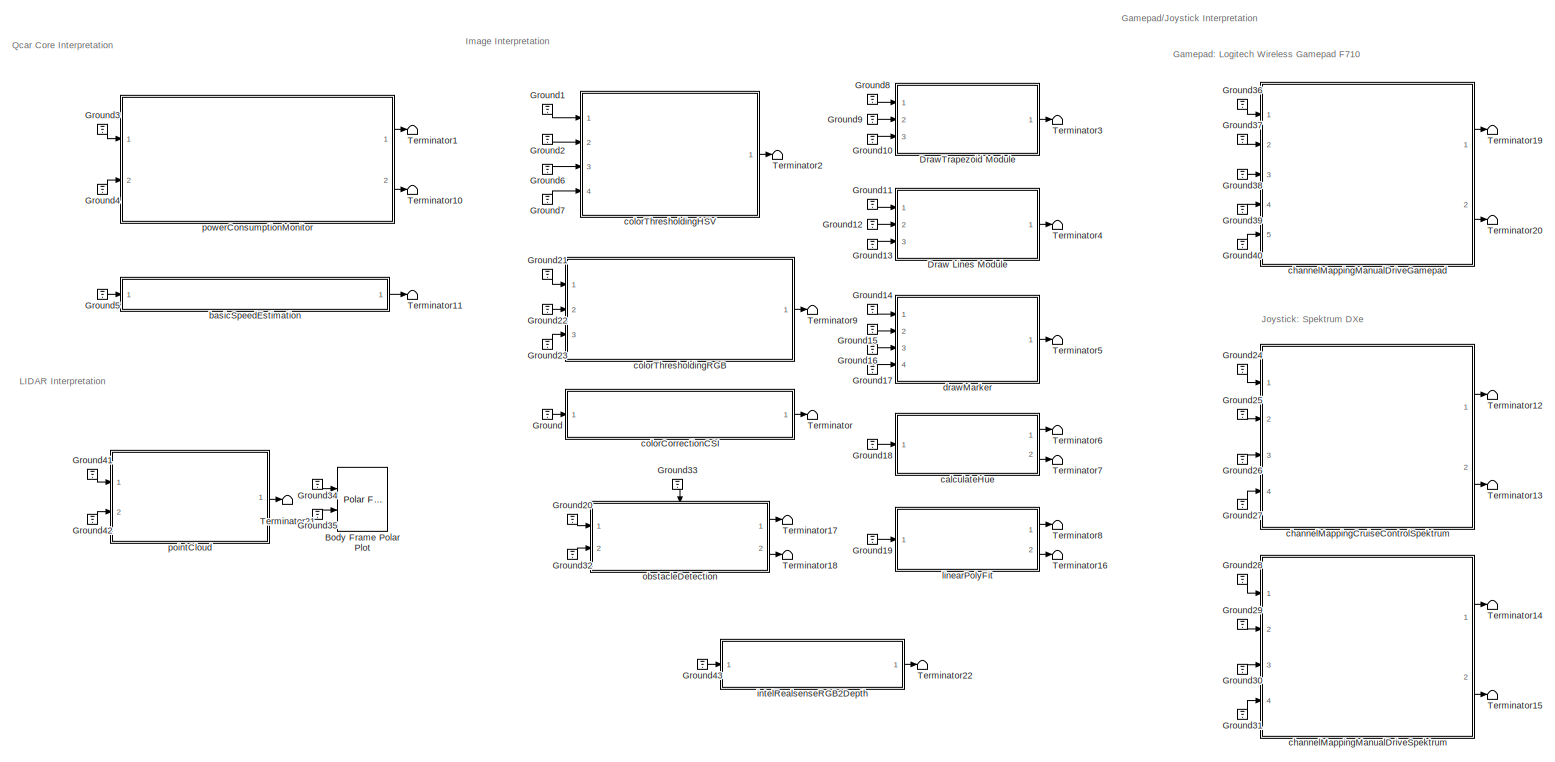
[diagram: root canvas - part 1/1, most of the canvas]
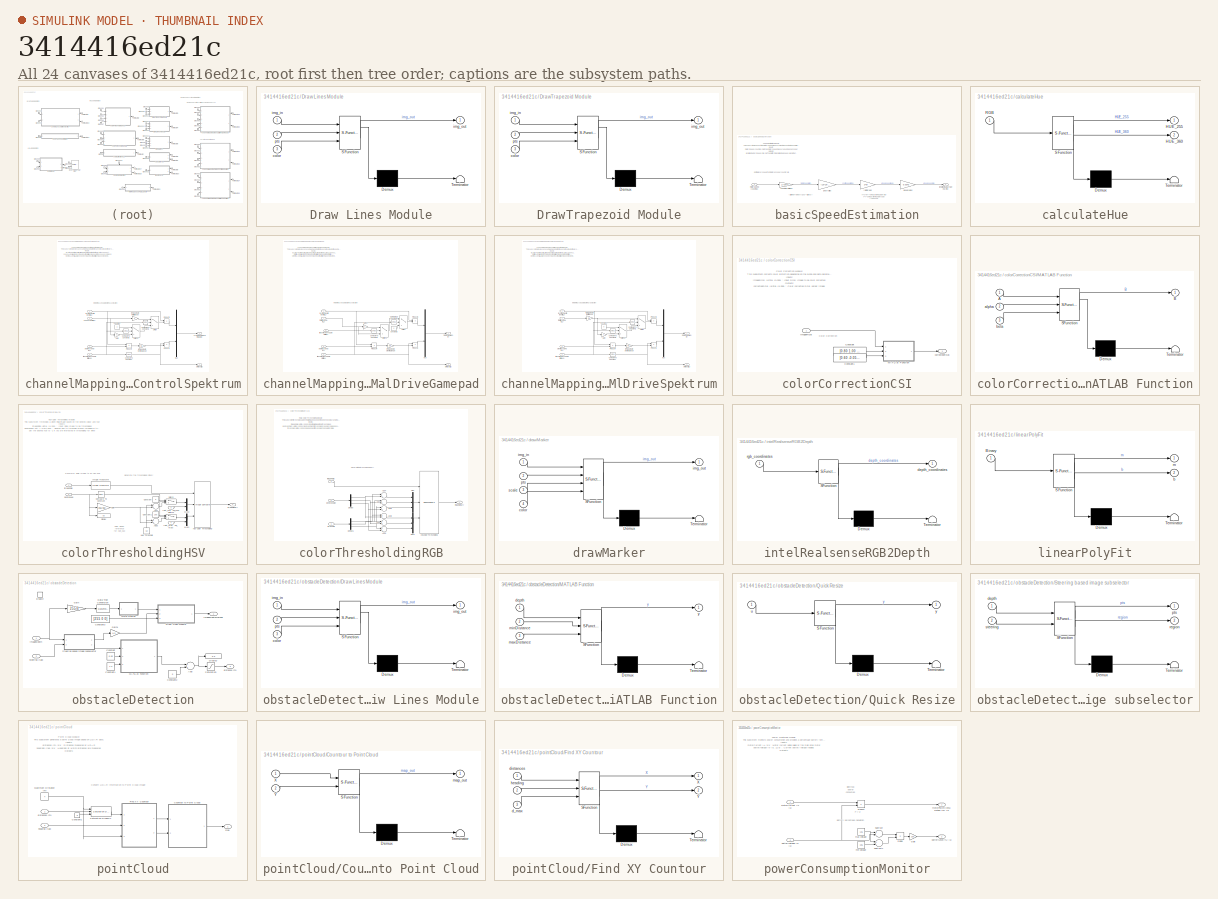
[diagram: thumbnail index - all 24 canvases of the model, root first then tree order]
MODEL slx_3414416ed21c
KIND model
CONFIG AbsTol = auto
CONFIG EnableMultiTasking = on
CONFIG FixedStep = 0.002
CONFIG MaxStep = auto
CONFIG MinStep = auto
CONFIG RelTol = 1e-3
CONFIG SampleTimeConstraint = Unconstrained
CONFIG Solver = ode2
CONFIG SolverName = ode2
CONFIG StartTime = 0.0
CONFIG StopTime = inf
BLOCK [Reference] Body Frame Polar Plot  REF=quarc_library/Sinks/Figures/Polar Figure
  Ports = [2]
  SourceBlock = quarc_library/Sinks/Figures/Polar Figure
  SourceProductName = QUARC Targets
  SourceType = Polar Figure
BLOCK [SubSystem] Draw Lines Module
  ErrorFcn = Stateflow.Translate.translate
  PermitHierarchicalResolution = ExplicitOnly
  Ports = [3, 1]
  RequestExecContextInheritance = off
  SFBlockType = MATLAB Function
  TreatAsAtomicUnit = on
BLOCK [Demux] Draw Lines Module/ Demux 
  Outputs = 1
  Ports = [1, 1]
BLOCK [S-Function] Draw Lines Module/ SFunction 
  EnableBusSupport = off
  FunctionName = sf_sfun
  PortCounts = [3 2]
  Ports = [3, 2]
  SFcnIsStateOwnerBlock = off
  SFunctionDeploymentMode = off
  Tag = Stateflow S-Function Interpretation_Unit 1
BLOCK [Terminator] Draw Lines Module/ Terminator 
BLOCK [Inport] Draw Lines Module/color
  IconDisplay = Port number
  Port = 3
BLOCK [Inport] Draw Lines Module/img_in
  IconDisplay = Port number
BLOCK [Outport] Draw Lines Module/img_out
  IconDisplay = Port number
BLOCK [Inport] Draw Lines Module/pts
  IconDisplay = Port number
  Port = 2
BLOCK [SubSystem] DrawTrapezoid Module
  ErrorFcn = Stateflow.Translate.translate
  PermitHierarchicalResolution = ExplicitOnly
  Ports = [3, 1]
  RequestExecContextInheritance = off
  SFBlockType = MATLAB Function
  TreatAsAtomicUnit = on
BLOCK [Demux] DrawTrapezoid Module/ Demux 
  Outputs = 1
  Ports = [1, 1]
BLOCK [S-Function] DrawTrapezoid Module/ SFunction 
  EnableBusSupport = off
  FunctionName = sf_sfun
  PortCounts = [3 2]
  Ports = [3, 2]
  SFcnIsStateOwnerBlock = off
  SFunctionDeploymentMode = off
  Tag = Stateflow S-Function Interpretation_Unit 2
BLOCK [Terminator] DrawTrapezoid Module/ Terminator 
BLOCK [Inport] DrawTrapezoid Module/color
  IconDisplay = Port number
  Port = 3
BLOCK [Inport] DrawTrapezoid Module/img_in
  IconDisplay = Port number
BLOCK [Outport] DrawTrapezoid Module/img_out
  IconDisplay = Port number
BLOCK [Inport] DrawTrapezoid Module/pts
  IconDisplay = Port number
  Port = 2
BLOCK [Ground] Ground
BLOCK [Ground] Ground1
BLOCK [Ground] Ground10
BLOCK [Ground] Ground11
BLOCK [Ground] Ground12
BLOCK [Ground] Ground13
BLOCK [Ground] Ground14
BLOCK [Ground] Ground15
BLOCK [Ground] Ground16
BLOCK [Ground] Ground17
BLOCK [Ground] Ground18
BLOCK [Ground] Ground19
BLOCK [Ground] Ground2
BLOCK [Ground] Ground20
BLOCK [Ground] Ground21
BLOCK [Ground] Ground22
BLOCK [Ground] Ground23
BLOCK [Ground] Ground24
BLOCK [Ground] Ground25
BLOCK [Ground] Ground26
BLOCK [Ground] Ground27
BLOCK [Ground] Ground28
BLOCK [Ground] Ground29
BLOCK [Ground] Ground3
BLOCK [Ground] Ground30
BLOCK [Ground] Ground31
BLOCK [Ground] Ground32
BLOCK [Ground] Ground33
BLOCK [Ground] Ground34
BLOCK [Ground] Ground35
BLOCK [Ground] Ground36
BLOCK [Ground] Ground37
BLOCK [Ground] Ground38
BLOCK [Ground] Ground39
BLOCK [Ground] Ground4
BLOCK [Ground] Ground40
BLOCK [Ground] Ground41
BLOCK [Ground] Ground42
BLOCK [Ground] Ground43
BLOCK [Ground] Ground5
BLOCK [Ground] Ground6
BLOCK [Ground] Ground7
BLOCK [Ground] Ground8
BLOCK [Ground] Ground9
BLOCK [Terminator] Terminator
BLOCK [Terminator] Terminator1
BLOCK [Terminator] Terminator10
BLOCK [Terminator] Terminator11
BLOCK [Terminator] Terminator12
BLOCK [Terminator] Terminator13
BLOCK [Terminator] Terminator14
BLOCK [Terminator] Terminator15
BLOCK [Terminator] Terminator16
BLOCK [Terminator] Terminator17
BLOCK [Terminator] Terminator18
BLOCK [Terminator] Terminator19
BLOCK [Terminator] Terminator2
BLOCK [Terminator] Terminator20
BLOCK [Terminator] Terminator21
BLOCK [Terminator] Terminator22
BLOCK [Terminator] Terminator3
BLOCK [Terminator] Terminator4
BLOCK [Terminator] Terminator5
BLOCK [Terminator] Terminator6
BLOCK [Terminator] Terminator7
BLOCK [Terminator] Terminator8
BLOCK [Terminator] Terminator9
BLOCK [SubSystem] basicSpeedEstimation
  Ports = [1, 1]
  RequestExecContextInheritance = off
BLOCK [Gain] basicSpeedEstimation/counts to rotations
  Gain = 1/720/4
  OutDataTypeStr = Inherit: Inherit via internal rule
  ParamDataTypeStr = Inherit: Inherit via internal rule
  SaturateOnIntegerOverflow = off
BLOCK [Gain] basicSpeedEstimation/gear ratios
  Gain = (13*19)/(70*37)
  OutDataTypeStr = Inherit: Inherit via internal rule
  ParamDataTypeStr = Inherit: Inherit via internal rule
  SaturateOnIntegerOverflow = off
BLOCK [Outport] basicSpeedEstimation/longitudinalCarSpeed (m//s)
  IconDisplay = Port number
BLOCK [Inport] basicSpeedEstimation/motorSpeed (counts//s)
  IconDisplay = Port number
BLOCK [Gain] basicSpeedEstimation/rot//s to rad//s
  Gain = 2*pi
  OutDataTypeStr = Inherit: Inherit via internal rule
  ParamDataTypeStr = Inherit: Inherit via internal rule
  SaturateOnIntegerOverflow = off
BLOCK [Gain] basicSpeedEstimation/wheel radius
  Gain = 0.0342
  OutDataTypeStr = Inherit: Inherit via internal rule
  ParamDataTypeStr = Inherit: Inherit via internal rule
  SaturateOnIntegerOverflow = off
BLOCK [SubSystem] calculateHue
  ErrorFcn = Stateflow.Translate.translate
  PermitHierarchicalResolution = ExplicitOnly
  Ports = [1, 2]
  RequestExecContextInheritance = off
  SFBlockType = MATLAB Function
  TreatAsAtomicUnit = on
BLOCK [Demux] calculateHue/ Demux 
  Outputs = 1
  Ports = [1, 1]
BLOCK [S-Function] calculateHue/ SFunction 
  EnableBusSupport = off
  FunctionName = sf_sfun
  PortCounts = [1 3]
  Ports = [1, 3]
  SFcnIsStateOwnerBlock = off
  SFunctionDeploymentMode = off
  Tag = Stateflow S-Function Interpretation_Unit 4
BLOCK [Terminator] calculateHue/ Terminator 
BLOCK [Outport] calculateHue/HUE_255
  IconDisplay = Port number
BLOCK [Outport] calculateHue/HUE_360
  IconDisplay = Port number
  Port = 2
BLOCK [Inport] calculateHue/RGB
  IconDisplay = Port number
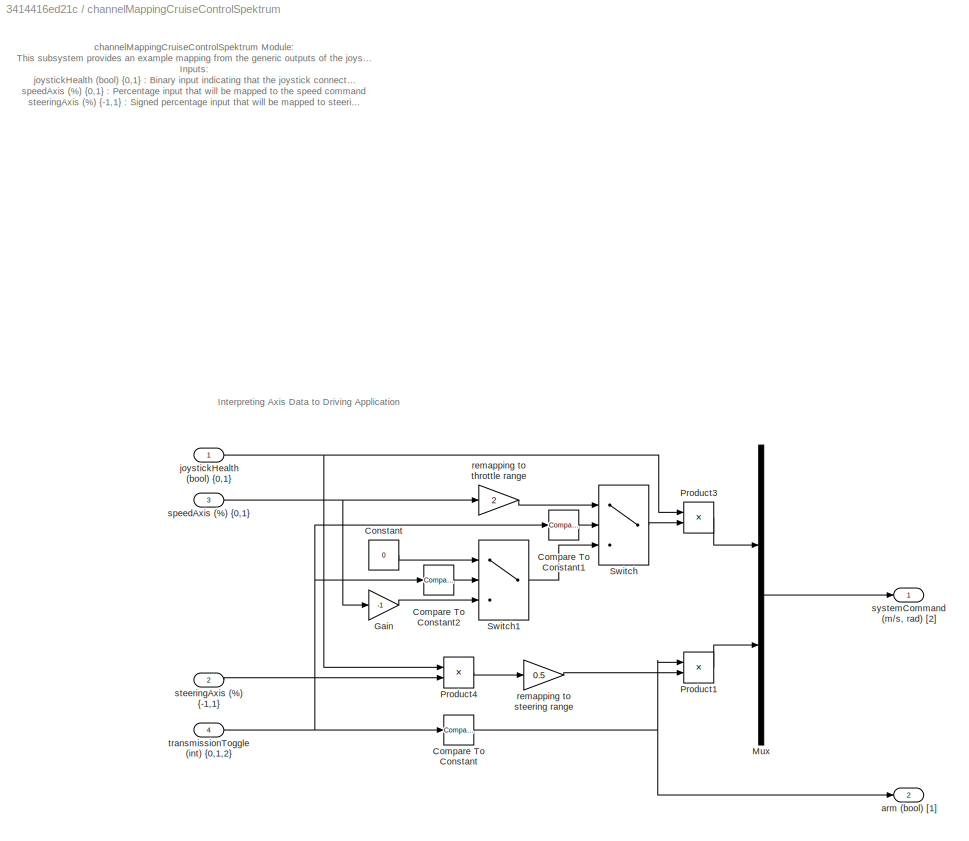
BLOCK [SubSystem] channelMappingCruiseControlSpektrum
  Ports = [4, 2]
  RequestExecContextInheritance = off
BLOCK [Gain] channelMappingCruiseControlSpektrum/ remapping to steering range 
  Gain = 0.5
  OutDataTypeStr = Inherit: Inherit via internal rule
  ParamDataTypeStr = Inherit: Inherit via internal rule
  SaturateOnIntegerOverflow = off
BLOCK [Reference] channelMappingCruiseControlSpektrum/Compare To Constant  REF=simulink/Logic and Bit
Operations/Compare
To Constant
  Ports = [1, 1]
  SourceBlock = simulink/Logic and Bit\nOperations/Compare\nTo Constant
  SourceProductBaseCode = SL
  SourceProductName = Simulink
  SourceType = Compare To Constant
BLOCK [Reference] channelMappingCruiseControlSpektrum/Compare To Constant1  REF=simulink/Logic and Bit
Operations/Compare
To Constant
  Ports = [1, 1]
  SourceBlock = simulink/Logic and Bit\nOperations/Compare\nTo Constant
  SourceProductBaseCode = SL
  SourceProductName = Simulink
  SourceType = Compare To Constant
BLOCK [Reference] channelMappingCruiseControlSpektrum/Compare To Constant2  REF=simulink/Logic and Bit
Operations/Compare
To Constant
  Ports = [1, 1]
  SourceBlock = simulink/Logic and Bit\nOperations/Compare\nTo Constant
  SourceProductBaseCode = SL
  SourceProductName = Simulink
  SourceType = Compare To Constant
BLOCK [Constant] channelMappingCruiseControlSpektrum/Constant
  Value = 0
BLOCK [Gain] channelMappingCruiseControlSpektrum/Gain
  Gain = -1
  OutDataTypeStr = Inherit: Inherit via internal rule
  ParamDataTypeStr = Inherit: Inherit via internal rule
  SaturateOnIntegerOverflow = off
BLOCK [Mux] channelMappingCruiseControlSpektrum/Mux
  DisplayOption = bar
  Inputs = 2
  Ports = [2, 1]
BLOCK [Product] channelMappingCruiseControlSpektrum/Product1
  InputSameDT = off
  OutDataTypeStr = Inherit: Inherit via internal rule
  Ports = [2, 1]
  RndMeth = Floor
  SaturateOnIntegerOverflow = off
BLOCK [Product] channelMappingCruiseControlSpektrum/Product3
  InputSameDT = off
  OutDataTypeStr = Inherit: Inherit via internal rule
  Ports = [2, 1]
  RndMeth = Floor
  SaturateOnIntegerOverflow = off
BLOCK [Product] channelMappingCruiseControlSpektrum/Product4
  InputSameDT = off
  OutDataTypeStr = Inherit: Inherit via internal rule
  Ports = [2, 1]
  RndMeth = Floor
  SaturateOnIntegerOverflow = off
BLOCK [Switch] channelMappingCruiseControlSpektrum/Switch
  Criteria = u2 > Threshold
  InputSameDT = off
  SaturateOnIntegerOverflow = off
  Threshold = 0.5
BLOCK [Switch] channelMappingCruiseControlSpektrum/Switch1
  Criteria = u2 > Threshold
  InputSameDT = off
  SaturateOnIntegerOverflow = off
  Threshold = 0.5
BLOCK [Outport] channelMappingCruiseControlSpektrum/arm (bool) [1]
  IconDisplay = Port number
  Port = 2
BLOCK [Inport] channelMappingCruiseControlSpektrum/joystickHealth (bool) {0,1}
  IconDisplay = Port number
BLOCK [Gain] channelMappingCruiseControlSpektrum/remapping to throttle range
  Gain = 2
  OutDataTypeStr = Inherit: Inherit via internal rule
  ParamDataTypeStr = Inherit: Inherit via internal rule
  SaturateOnIntegerOverflow = off
BLOCK [Inport] channelMappingCruiseControlSpektrum/speedAxis (%) {0,1}
  IconDisplay = Port number
  Port = 3
BLOCK [Inport] channelMappingCruiseControlSpektrum/steeringAxis (%) {-1,1}
  IconDisplay = Port number
  Port = 2
BLOCK [Outport] channelMappingCruiseControlSpektrum/systemCommand (m//s, rad) [2]
  IconDisplay = Port number
BLOCK [Inport] channelMappingCruiseControlSpektrum/transmissionToggle (int) {0,1,2}
  IconDisplay = Port number
  Port = 4
BLOCK [SubSystem] channelMappingManualDriveGamepad
  Ports = [5, 2]
  RequestExecContextInheritance = off
BLOCK [Gain] channelMappingManualDriveGamepad/ remapping to steering range 
  Gain = 0.5
  OutDataTypeStr = Inherit: Inherit via internal rule
  ParamDataTypeStr = Inherit: Inherit via internal rule
  SaturateOnIntegerOverflow = off
BLOCK [Reference] channelMappingManualDriveGamepad/Compare To Constant1  REF=simulink/Logic and Bit
Operations/Compare
To Constant
  Ports = [1, 1]
  SourceBlock = simulink/Logic and Bit\nOperations/Compare\nTo Constant
  SourceProductBaseCode = SL
  SourceProductName = Simulink
  SourceType = Compare To Constant
BLOCK [Reference] channelMappingManualDriveGamepad/Compare To Constant2  REF=simulink/Logic and Bit
Operations/Compare
To Constant
  Ports = [1, 1]
  SourceBlock = simulink/Logic and Bit\nOperations/Compare\nTo Constant
  SourceProductBaseCode = SL
  SourceProductName = Simulink
  SourceType = Compare To Constant
BLOCK [Constant] channelMappingManualDriveGamepad/Constant2
  Value = 0
BLOCK [Gain] channelMappingManualDriveGamepad/Gain1
  Gain = -1
  OutDataTypeStr = Inherit: Inherit via internal rule
  ParamDataTypeStr = Inherit: Inherit via internal rule
  SaturateOnIntegerOverflow = off
BLOCK [Mux] channelMappingManualDriveGamepad/Mux
  DisplayOption = bar
  Inputs = 2
  Ports = [2, 1]
BLOCK [Product] channelMappingManualDriveGamepad/Product1
  InputSameDT = off
  OutDataTypeStr = Inherit: Inherit via internal rule
  Ports = [2, 1]
  RndMeth = Floor
  SaturateOnIntegerOverflow = off
BLOCK [Product] channelMappingManualDriveGamepad/Product3
  InputSameDT = off
  OutDataTypeStr = Inherit: Inherit via internal rule
  Ports = [2, 1]
  RndMeth = Floor
  SaturateOnIntegerOverflow = off
BLOCK [Product] channelMappingManualDriveGamepad/Product4
  InputSameDT = off
  OutDataTypeStr = Inherit: Inherit via internal rule
  Ports = [2, 1]
  RndMeth = Floor
  SaturateOnIntegerOverflow = off
BLOCK [Switch] channelMappingManualDriveGamepad/Switch
  Criteria = u2 > Threshold
  InputSameDT = off
  SaturateOnIntegerOverflow = off
  Threshold = 0.5
BLOCK [Switch] channelMappingManualDriveGamepad/Switch1
  Criteria = u2 > Threshold
  InputSameDT = off
  SaturateOnIntegerOverflow = off
  Threshold = 0.5
BLOCK [Outport] channelMappingManualDriveGamepad/arm (bool) [1]
  IconDisplay = Port number
  Port = 2
BLOCK [Inport] channelMappingManualDriveGamepad/joystickHealth (bool) {0,1}
  IconDisplay = Port number
BLOCK [Outport] channelMappingManualDriveGamepad/motorCmd (%, rad) [2]
  IconDisplay = Port number
BLOCK [Inport] channelMappingManualDriveGamepad/steeringAxis (%) {-1,1}
  IconDisplay = Port number
  Port = 2
BLOCK [Inport] channelMappingManualDriveGamepad/throttleAxis (%) {0,1}
  IconDisplay = Port number
  Port = 3
BLOCK [Inport] channelMappingManualDriveGamepad/transmissionToggle1 (int) {0,1}
  IconDisplay = Port number
  Port = 4
BLOCK [Inport] channelMappingManualDriveGamepad/transmissionToggle2 (int) {0,1}
  IconDisplay = Port number
  Port = 5
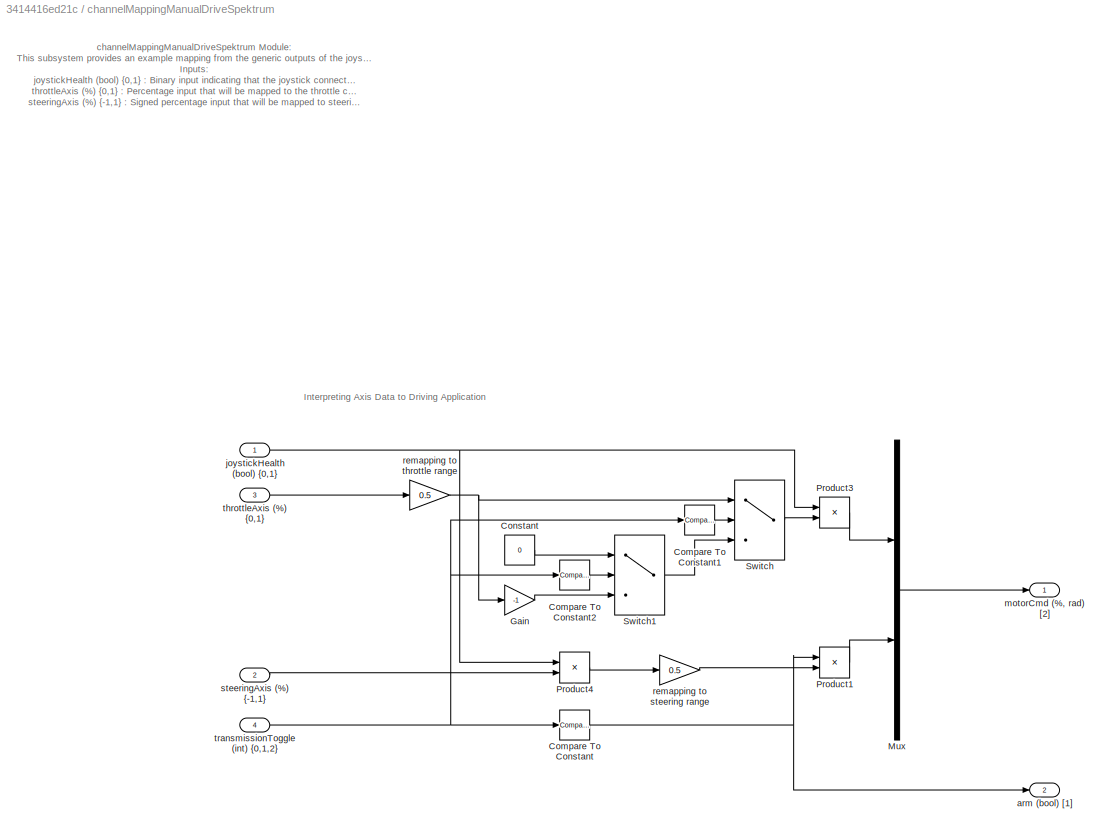
BLOCK [SubSystem] channelMappingManualDriveSpektrum
  Ports = [4, 2]
  RequestExecContextInheritance = off
BLOCK [Gain] channelMappingManualDriveSpektrum/ remapping to steering range 
  Gain = 0.5
  OutDataTypeStr = Inherit: Inherit via internal rule
  ParamDataTypeStr = Inherit: Inherit via internal rule
  SaturateOnIntegerOverflow = off
BLOCK [Gain] channelMappingManualDriveSpektrum/ remapping to throttle range
  Gain = 0.5
  OutDataTypeStr = Inherit: Inherit via internal rule
  ParamDataTypeStr = Inherit: Inherit via internal rule
  SaturateOnIntegerOverflow = off
BLOCK [Reference] channelMappingManualDriveSpektrum/Compare To Constant  REF=simulink/Logic and Bit
Operations/Compare
To Constant
  Ports = [1, 1]
  SourceBlock = simulink/Logic and Bit\nOperations/Compare\nTo Constant
  SourceProductBaseCode = SL
  SourceProductName = Simulink
  SourceType = Compare To Constant
BLOCK [Reference] channelMappingManualDriveSpektrum/Compare To Constant1  REF=simulink/Logic and Bit
Operations/Compare
To Constant
  Ports = [1, 1]
  SourceBlock = simulink/Logic and Bit\nOperations/Compare\nTo Constant
  SourceProductBaseCode = SL
  SourceProductName = Simulink
  SourceType = Compare To Constant
BLOCK [Reference] channelMappingManualDriveSpektrum/Compare To Constant2  REF=simulink/Logic and Bit
Operations/Compare
To Constant
  Ports = [1, 1]
  SourceBlock = simulink/Logic and Bit\nOperations/Compare\nTo Constant
  SourceProductBaseCode = SL
  SourceProductName = Simulink
  SourceType = Compare To Constant
BLOCK [Constant] channelMappingManualDriveSpektrum/Constant
  Value = 0
BLOCK [Gain] channelMappingManualDriveSpektrum/Gain
  Gain = -1
  OutDataTypeStr = Inherit: Inherit via internal rule
  ParamDataTypeStr = Inherit: Inherit via internal rule
  SaturateOnIntegerOverflow = off
BLOCK [Mux] channelMappingManualDriveSpektrum/Mux
  DisplayOption = bar
  Inputs = 2
  Ports = [2, 1]
BLOCK [Product] channelMappingManualDriveSpektrum/Product1
  InputSameDT = off
  OutDataTypeStr = Inherit: Inherit via internal rule
  Ports = [2, 1]
  RndMeth = Floor
  SaturateOnIntegerOverflow = off
BLOCK [Product] channelMappingManualDriveSpektrum/Product3
  InputSameDT = off
  OutDataTypeStr = Inherit: Inherit via internal rule
  Ports = [2, 1]
  RndMeth = Floor
  SaturateOnIntegerOverflow = off
BLOCK [Product] channelMappingManualDriveSpektrum/Product4
  InputSameDT = off
  OutDataTypeStr = Inherit: Inherit via internal rule
  Ports = [2, 1]
  RndMeth = Floor
  SaturateOnIntegerOverflow = off
BLOCK [Switch] channelMappingManualDriveSpektrum/Switch
  Criteria = u2 > Threshold
  InputSameDT = off
  SaturateOnIntegerOverflow = off
  Threshold = 0.5
BLOCK [Switch] channelMappingManualDriveSpektrum/Switch1
  Criteria = u2 > Threshold
  InputSameDT = off
  SaturateOnIntegerOverflow = off
  Threshold = 0.5
BLOCK [Outport] channelMappingManualDriveSpektrum/arm (bool) [1]
  IconDisplay = Port number
  Port = 2
BLOCK [Inport] channelMappingManualDriveSpektrum/joystickHealth (bool) {0,1}
  IconDisplay = Port number
BLOCK [Outport] channelMappingManualDriveSpektrum/motorCmd (%, rad) [2]
  IconDisplay = Port number
BLOCK [Inport] channelMappingManualDriveSpektrum/steeringAxis (%) {-1,1}
  IconDisplay = Port number
  Port = 2
BLOCK [Inport] channelMappingManualDriveSpektrum/throttleAxis (%) {0,1}
  IconDisplay = Port number
  Port = 3
BLOCK [Inport] channelMappingManualDriveSpektrum/transmissionToggle (int) {0,1,2}
  IconDisplay = Port number
  Port = 4
BLOCK [SubSystem] colorCorrectionCSI
  Ports = [1, 1]
  RequestExecContextInheritance = off
BLOCK [Constant] colorCorrectionCSI/Constant
  Value = [0.80 1.00 1.00]
BLOCK [Constant] colorCorrectionCSI/Constant1
  Value = [0.60 -0.05 0.13]
BLOCK [SubSystem] colorCorrectionCSI/MATLAB Function
  ErrorFcn = Stateflow.Translate.translate
  PermitHierarchicalResolution = ExplicitOnly
  Ports = [3, 1]
  RequestExecContextInheritance = off
  SFBlockType = MATLAB Function
  TreatAsAtomicUnit = on
BLOCK [Demux] colorCorrectionCSI/MATLAB Function/ Demux 
  Outputs = 1
  Ports = [1, 1]
BLOCK [S-Function] colorCorrectionCSI/MATLAB Function/ SFunction 
  EnableBusSupport = off
  FunctionName = sf_sfun
  PortCounts = [3 2]
  Ports = [3, 2]
  SFcnIsStateOwnerBlock = off
  SFunctionDeploymentMode = off
  Tag = Stateflow S-Function Interpretation_Unit 7
BLOCK [Terminator] colorCorrectionCSI/MATLAB Function/ Terminator 
BLOCK [Inport] colorCorrectionCSI/MATLAB Function/A
  IconDisplay = Port number
BLOCK [Outport] colorCorrectionCSI/MATLAB Function/B
  IconDisplay = Port number
BLOCK [Inport] colorCorrectionCSI/MATLAB Function/alpha
  IconDisplay = Port number
  Port = 2
BLOCK [Inport] colorCorrectionCSI/MATLAB Function/beta
  IconDisplay = Port number
  Port = 3
BLOCK [Outport] colorCorrectionCSI/correctedRGB
  IconDisplay = Port number
BLOCK [Inport] colorCorrectionCSI/imageRGB
  IconDisplay = Port number
BLOCK [SubSystem] colorThresholdingHSV
  Ports = [4, 1]
  RequestExecContextInheritance = off
BLOCK [Sum] colorThresholdingHSV/Add3
  InputSameDT = off
  OutDataTypeStr = Inherit: Inherit via internal rule
  Ports = [2, 1]
  SaturateOnIntegerOverflow = off
BLOCK [Sum] colorThresholdingHSV/Add4
  InputSameDT = off
  Inputs = -+
  OutDataTypeStr = Inherit: Inherit via internal rule
  Ports = [2, 1]
  SaturateOnIntegerOverflow = off
BLOCK [Reference] colorThresholdingHSV/Compare To Constant  REF=simulink/Logic and Bit
Operations/Compare
To Constant
  Ports = [1, 1]
  SourceBlock = simulink/Logic and Bit\nOperations/Compare\nTo Constant
  SourceProductBaseCode = SL
  SourceProductName = Simulink
  SourceType = Compare To Constant
BLOCK [Constant] colorThresholdingHSV/Constant
  Value = 0
BLOCK [Constant] colorThresholdingHSV/Constant1
  Value = 255
BLOCK [Display] colorThresholdingHSV/Display
  Ports = [1]
BLOCK [Gain] colorThresholdingHSV/Gain
  Gain = 255/360
  OutDataTypeStr = Inherit: Inherit via internal rule
  ParamDataTypeStr = Inherit: Inherit via internal rule
  SaturateOnIntegerOverflow = off
BLOCK [Reference] colorThresholdingHSV/HSV Color Thresholding  REF=quarc_library/Image Processing/Generic/Image Compare
  Ports = [3, 1]
  SourceBlock = quarc_library/Image Processing/Generic/Image Compare
  SourceProductName = QUARC Targets
  SourceType = Image Compare
BLOCK [Constant] colorThresholdingHSV/Hue Threshold
  Value = 50
BLOCK [Reference] colorThresholdingHSV/Image Transform  REF=quarc_library/Image Processing/Generic/Image Transform
  AttributesFormatString = (%<algorithm>)
  Ports = [1, 1]
  SourceBlock = quarc_library/Image Processing/Generic/Image Transform
  SourceProductName = QUARC Targets
  SourceType = Image Transform
BLOCK [Mux] colorThresholdingHSV/Mux1
  DisplayOption = bar
  Inputs = 2
  Ports = [2, 1]
BLOCK [Mux] colorThresholdingHSV/Mux2
  DisplayOption = bar
  Inputs = 2
  Ports = [2, 1]
BLOCK [Switch] colorThresholdingHSV/Switch
  Criteria = u2 > Threshold
  InputSameDT = off
  SaturateOnIntegerOverflow = off
BLOCK [Switch] colorThresholdingHSV/Switch1
  Criteria = u2 > Threshold
  InputSameDT = off
  SaturateOnIntegerOverflow = off
BLOCK [Inport] colorThresholdingHSV/[Sat_max, Val_max]
  IconDisplay = Port number
  Port = 4
BLOCK [Inport] colorThresholdingHSV/[Sat_min, Val_min]
  IconDisplay = Port number
  Port = 3
BLOCK [Inport] colorThresholdingHSV/desiredHue
  IconDisplay = Port number
  Port = 2
BLOCK [Outport] colorThresholdingHSV/imageBinary
  IconDisplay = Port number
BLOCK [Inport] colorThresholdingHSV/imageRGB
  IconDisplay = Port number
BLOCK [SubSystem] colorThresholdingRGB
  Ports = [3, 1]
  RequestExecContextInheritance = off
BLOCK [Sum] colorThresholdingRGB/Add1
  InputSameDT = off
  Inputs = -+
  OutDataTypeStr = Inherit: Inherit via internal rule
  Ports = [2, 1]
  SaturateOnIntegerOverflow = off
BLOCK [Sum] colorThresholdingRGB/Add2
  InputSameDT = off
  Inputs = -+
  OutDataTypeStr = Inherit: Inherit via internal rule
  Ports = [2, 1]
  SaturateOnIntegerOverflow = off
BLOCK [Sum] colorThresholdingRGB/Add3
  InputSameDT = off
  OutDataTypeStr = Inherit: Inherit via internal rule
  Ports = [2, 1]
  SaturateOnIntegerOverflow = off
BLOCK [Sum] colorThresholdingRGB/Add4
  InputSameDT = off
  Inputs = -+
  OutDataTypeStr = Inherit: Inherit via internal rule
  Ports = [2, 1]
  SaturateOnIntegerOverflow = off
BLOCK [Sum] colorThresholdingRGB/Add5
  InputSameDT = off
  OutDataTypeStr = Inherit: Inherit via internal rule
  Ports = [2, 1]
  SaturateOnIntegerOverflow = off
BLOCK [Sum] colorThresholdingRGB/Add6
  InputSameDT = off
  OutDataTypeStr = Inherit: Inherit via internal rule
  Ports = [2, 1]
  SaturateOnIntegerOverflow = off
BLOCK [Demux] colorThresholdingRGB/Demux
  DisplayOption = bar
  Outputs = 3
  Ports = [1, 3]
BLOCK [Demux] colorThresholdingRGB/Demux1
  DisplayOption = bar
  Outputs = 3
  Ports = [1, 3]
BLOCK [Reference] colorThresholdingRGB/HSV Color Thresholding  REF=quarc_library/Image Processing/Generic/Image Compare
  Ports = [3, 1]
  SourceBlock = quarc_library/Image Processing/Generic/Image Compare
  SourceProductName = QUARC Targets
  SourceType = Image Compare
BLOCK [Mux] colorThresholdingRGB/Mux
  DisplayOption = bar
  Inputs = 3
  Ports = [3, 1]
BLOCK [Mux] colorThresholdingRGB/Mux1
  DisplayOption = bar
  Inputs = 3
  Ports = [3, 1]
BLOCK [Inport] colorThresholdingRGB/desiredColor
  IconDisplay = Port number
  Port = 2
BLOCK [Outport] colorThresholdingRGB/imageBinary
  IconDisplay = Port number
BLOCK [Inport] colorThresholdingRGB/imageRGB
  IconDisplay = Port number
BLOCK [Inport] colorThresholdingRGB/threshold 
  IconDisplay = Port number
  Port = 3
BLOCK [SubSystem] drawMarker
  ErrorFcn = Stateflow.Translate.translate
  PermitHierarchicalResolution = ExplicitOnly
  Ports = [4, 1]
  RequestExecContextInheritance = off
  SFBlockType = MATLAB Function
  TreatAsAtomicUnit = on
BLOCK [Demux] drawMarker/ Demux 
  Outputs = 1
  Ports = [1, 1]
BLOCK [S-Function] drawMarker/ SFunction 
  EnableBusSupport = off
  FunctionName = sf_sfun
  PortCounts = [4 2]
  Ports = [4, 2]
  SFcnIsStateOwnerBlock = off
  SFunctionDeploymentMode = off
  Tag = Stateflow S-Function Interpretation_Unit 3
BLOCK [Terminator] drawMarker/ Terminator 
BLOCK [Inport] drawMarker/color
  IconDisplay = Port number
  Port = 4
BLOCK [Inport] drawMarker/img_in
  IconDisplay = Port number
BLOCK [Outport] drawMarker/img_out
  IconDisplay = Port number
BLOCK [Inport] drawMarker/pts
  IconDisplay = Port number
  Port = 2
BLOCK [Inport] drawMarker/scale
  IconDisplay = Port number
  Port = 3
BLOCK [SubSystem] intelRealsenseRGB2Depth
  ErrorFcn = Stateflow.Translate.translate
  PermitHierarchicalResolution = ExplicitOnly
  Ports = [1, 1]
  RequestExecContextInheritance = off
  SFBlockType = MATLAB Function
  TreatAsAtomicUnit = on
BLOCK [Demux] intelRealsenseRGB2Depth/ Demux 
  Outputs = 1
  Ports = [1, 1]
BLOCK [S-Function] intelRealsenseRGB2Depth/ SFunction 
  EnableBusSupport = on
  FunctionName = sf_sfun
  PortCounts = [1 2]
  Ports = [1, 2]
  SFcnIsStateOwnerBlock = off
  SFunctionDeploymentMode = off
  Tag = Stateflow S-Function Interpretation_Unit 13
BLOCK [Terminator] intelRealsenseRGB2Depth/ Terminator 
BLOCK [Outport] intelRealsenseRGB2Depth/depth_coordinates
  IconDisplay = Port number
BLOCK [Inport] intelRealsenseRGB2Depth/rgb_coordinates
  IconDisplay = Port number
BLOCK [SubSystem] linearPolyFit
  ErrorFcn = Stateflow.Translate.translate
  PermitHierarchicalResolution = ExplicitOnly
  Ports = [1, 2]
  RequestExecContextInheritance = off
  SFBlockType = MATLAB Function
  TreatAsAtomicUnit = on
BLOCK [Demux] linearPolyFit/ Demux 
  Outputs = 1
  Ports = [1, 1]
BLOCK [S-Function] linearPolyFit/ SFunction 
  EnableBusSupport = on
  FunctionName = sf_sfun
  PortCounts = [1 3]
  Ports = [1, 3]
  SFcnIsStateOwnerBlock = off
  SFunctionDeploymentMode = off
  Tag = Stateflow S-Function Interpretation_Unit 9
BLOCK [Terminator] linearPolyFit/ Terminator 
BLOCK [Inport] linearPolyFit/Binary
  IconDisplay = Port number
BLOCK [Outport] linearPolyFit/b
  IconDisplay = Port number
  Port = 2
BLOCK [Outport] linearPolyFit/m
  IconDisplay = Port number
BLOCK [SubSystem] obstacleDetection
  Ports = [2, 2, 1]
  RequestExecContextInheritance = off
BLOCK [Sum] obstacleDetection/Add
  InputSameDT = off
  OutDataTypeStr = Inherit: Inherit via internal rule
  Ports = [2, 1]
  SaturateOnIntegerOverflow = off
BLOCK [Constant] obstacleDetection/Constant
  Value = 0.05
BLOCK [Constant] obstacleDetection/Constant1
  Value = 1.2
BLOCK [Constant] obstacleDetection/Constant2
  Value = 0
BLOCK [Constant] obstacleDetection/Constant3
  Value = [255 0 0]
BLOCK [DataTypeConversion] obstacleDetection/Data Type Conversion
  OutDataTypeStr = uint8
  RndMeth = Floor
  SaturateOnIntegerOverflow = off
BLOCK [Display] obstacleDetection/Display
  Decimation = 1
  Ports = [1]
BLOCK [SubSystem] obstacleDetection/Draw Lines Module
  ErrorFcn = Stateflow.Translate.translate
  PermitHierarchicalResolution = ExplicitOnly
  Ports = [3, 1]
  RequestExecContextInheritance = off
  SFBlockType = MATLAB Function
  TreatAsAtomicUnit = on
BLOCK [Demux] obstacleDetection/Draw Lines Module/ Demux 
  Outputs = 1
  Ports = [1, 1]
BLOCK [S-Function] obstacleDetection/Draw Lines Module/ SFunction 
  EnableBusSupport = off
  FunctionName = sf_sfun
  PortCounts = [3 2]
  Ports = [3, 2]
  SFcnIsStateOwnerBlock = off
  SFunctionDeploymentMode = off
  Tag = Stateflow S-Function Interpretation_Unit 6
BLOCK [Terminator] obstacleDetection/Draw Lines Module/ Terminator 
BLOCK [Inport] obstacleDetection/Draw Lines Module/color
  IconDisplay = Port number
  Port = 3
BLOCK [Inport] obstacleDetection/Draw Lines Module/img_in
  IconDisplay = Port number
BLOCK [Outport] obstacleDetection/Draw Lines Module/img_out
  IconDisplay = Port number
BLOCK [Inport] obstacleDetection/Draw Lines Module/pts
  IconDisplay = Port number
  Port = 2
BLOCK [EnablePort] obstacleDetection/Enable
  Ports = []
  PropagateVarSize = During execution
BLOCK [Gain] obstacleDetection/Gain
  Gain = 255/4
  OutDataTypeStr = Inherit: Inherit via internal rule
  ParamDataTypeStr = Inherit: Inherit via internal rule
  SaturateOnIntegerOverflow = off
BLOCK [Gain] obstacleDetection/Gain1
  Gain = 1/3
  OutDataTypeStr = Inherit: Inherit via internal rule
  ParamDataTypeStr = Inherit: Inherit via internal rule
  SaturateOnIntegerOverflow = off
BLOCK [SubSystem] obstacleDetection/MATLAB Function
  ErrorFcn = Stateflow.Translate.translate
  PermitHierarchicalResolution = ExplicitOnly
  Ports = [3, 1]
  RequestExecContextInheritance = off
  SFBlockType = MATLAB Function
  TreatAsAtomicUnit = on
BLOCK [Demux] obstacleDetection/MATLAB Function/ Demux 
  Outputs = 1
  Ports = [1, 1]
BLOCK [S-Function] obstacleDetection/MATLAB Function/ SFunction 
  EnableBusSupport = on
  FunctionName = sf_sfun
  PortCounts = [3 2]
  Ports = [3, 2]
  SFcnIsStateOwnerBlock = off
  SFunctionDeploymentMode = off
  Tag = Stateflow S-Function Interpretation_Unit 10
BLOCK [Terminator] obstacleDetection/MATLAB Function/ Terminator 
BLOCK [Inport] obstacleDetection/MATLAB Function/depth
  IconDisplay = Port number
BLOCK [Inport] obstacleDetection/MATLAB Function/maxDistance
  IconDisplay = Port number
  Port = 3
BLOCK [Inport] obstacleDetection/MATLAB Function/minDistance
  IconDisplay = Port number
  Port = 2
BLOCK [Outport] obstacleDetection/MATLAB Function/y
  IconDisplay = Port number
BLOCK [SubSystem] obstacleDetection/Quick Resize
  ErrorFcn = Stateflow.Translate.translate
  PermitHierarchicalResolution = ExplicitOnly
  Ports = [1, 1]
  RequestExecContextInheritance = off
  SFBlockType = MATLAB Function
  TreatAsAtomicUnit = on
BLOCK [Demux] obstacleDetection/Quick Resize/ Demux 
  Outputs = 1
  Ports = [1, 1]
BLOCK [S-Function] obstacleDetection/Quick Resize/ SFunction 
  EnableBusSupport = on
  FunctionName = sf_sfun
  PortCounts = [1 2]
  Ports = [1, 2]
  SFcnIsStateOwnerBlock = off
  SFunctionDeploymentMode = off
  Tag = Stateflow S-Function Interpretation_Unit 11
BLOCK [Terminator] obstacleDetection/Quick Resize/ Terminator 
BLOCK [Inport] obstacleDetection/Quick Resize/u
  IconDisplay = Port number
BLOCK [Outport] obstacleDetection/Quick Resize/y
  IconDisplay = Port number
BLOCK [Saturate] obstacleDetection/Saturation
  InputPortMap = u0
  LowerLimit = 0.2
  Ports = [1, 1]
  UpperLimit = 1.2
BLOCK [SubSystem] obstacleDetection/Steering based image subselector
  ErrorFcn = Stateflow.Translate.translate
  PermitHierarchicalResolution = ExplicitOnly
  Ports = [2, 2]
  RequestExecContextInheritance = off
  SFBlockType = MATLAB Function
  TreatAsAtomicUnit = on
BLOCK [Demux] obstacleDetection/Steering based image subselector/ Demux 
  Outputs = 1
  Ports = [1, 1]
BLOCK [S-Function] obstacleDetection/Steering based image subselector/ SFunction 
  EnableBusSupport = on
  FunctionName = sf_sfun
  PortCounts = [2 3]
  Ports = [2, 3]
  SFcnIsStateOwnerBlock = off
  SFunctionDeploymentMode = off
  Tag = Stateflow S-Function Interpretation_Unit 12
BLOCK [Terminator] obstacleDetection/Steering based image subselector/ Terminator 
BLOCK [Inport] obstacleDetection/Steering based image subselector/depth
  IconDisplay = Port number
BLOCK [Outport] obstacleDetection/Steering based image subselector/pts
  IconDisplay = Port number
BLOCK [Outport] obstacleDetection/Steering based image subselector/region
  IconDisplay = Port number
  Port = 2
BLOCK [Inport] obstacleDetection/Steering based image subselector/steering
  IconDisplay = Port number
  Port = 2
BLOCK [Outport] obstacleDetection/distance (m)
  IconDisplay = Port number
  Port = 2
BLOCK [Inport] obstacleDetection/imageDepth
  IconDisplay = Port number
BLOCK [Outport] obstacleDetection/imageDepthMarked
  IconDisplay = Port number
BLOCK [Inport] obstacleDetection/steering (rad)
  IconDisplay = Port number
  Port = 2
BLOCK [SubSystem] pointCloud
  Ports = [2, 1]
  RequestExecContextInheritance = off
BLOCK [Constant] pointCloud/Constant1
  Value = 0
BLOCK [SubSystem] pointCloud/Countour to Point Cloud
  ErrorFcn = Stateflow.Translate.translate
  PermitHierarchicalResolution = ExplicitOnly
  Ports = [2, 1]
  RequestExecContextInheritance = off
  SFBlockType = MATLAB Function
  TreatAsAtomicUnit = on
BLOCK [Demux] pointCloud/Countour to Point Cloud/ Demux 
  Outputs = 1
  Ports = [1, 1]
BLOCK [S-Function] pointCloud/Countour to Point Cloud/ SFunction 
  EnableBusSupport = off
  FunctionName = sf_sfun
  PortCounts = [2 2]
  Ports = [2, 2]
  SFcnIsStateOwnerBlock = off
  SFunctionDeploymentMode = off
  Tag = Stateflow S-Function Interpretation_Unit 8
BLOCK [Terminator] pointCloud/Countour to Point Cloud/ Terminator 
BLOCK [Inport] pointCloud/Countour to Point Cloud/X
  IconDisplay = Port number
BLOCK [Inport] pointCloud/Countour to Point Cloud/Y
  IconDisplay = Port number
  Port = 2
BLOCK [Outport] pointCloud/Countour to Point Cloud/map_out
  IconDisplay = Port number
BLOCK [SubSystem] pointCloud/Find XY Countour
  ErrorFcn = Stateflow.Translate.translate
  PermitHierarchicalResolution = ExplicitOnly
  Ports = [3, 2]
  RequestExecContextInheritance = off
  SFBlockType = MATLAB Function
  TreatAsAtomicUnit = on
BLOCK [Demux] pointCloud/Find XY Countour/ Demux 
  Outputs = 1
  Ports = [1, 1]
BLOCK [S-Function] pointCloud/Find XY Countour/ SFunction 
  EnableBusSupport = off
  FunctionName = sf_sfun
  PortCounts = [3 3]
  Ports = [3, 3]
  SFcnIsStateOwnerBlock = off
  SFunctionDeploymentMode = off
  Tag = Stateflow S-Function Interpretation_Unit 5
BLOCK [Terminator] pointCloud/Find XY Countour/ Terminator 
BLOCK [Outport] pointCloud/Find XY Countour/X
  IconDisplay = Port number
BLOCK [Outport] pointCloud/Find XY Countour/Y
  IconDisplay = Port number
  Port = 2
BLOCK [Inport] pointCloud/Find XY Countour/d_max
  IconDisplay = Port number
  Port = 3
BLOCK [Inport] pointCloud/Find XY Countour/distances
  IconDisplay = Port number
BLOCK [Inport] pointCloud/Find XY Countour/heading
  IconDisplay = Port number
  Port = 2
BLOCK [Constant] pointCloud/Maximum Distance (m)
  Value = 4
BLOCK [Reference] pointCloud/Saturation Dynamic  REF=simulink/Discontinuities/Saturation
Dynamic
  Ports = [3, 1]
  SourceBlock = simulink/Discontinuities/Saturation\nDynamic
  SourceProductBaseCode = SL
  SourceProductName = Simulink
  SourceType = Saturation Dynamic
BLOCK [Inport] pointCloud/distances (m)
  IconDisplay = Port number
BLOCK [Inport] pointCloud/heading (rad)
  IconDisplay = Port number
  Port = 2
BLOCK [Outport] pointCloud/map
  IconDisplay = Port number
BLOCK [SubSystem] powerConsumptionMonitor
  Ports = [2, 2]
  RequestExecContextInheritance = off
BLOCK [Product] powerConsumptionMonitor/Divide
  InputSameDT = off
  Inputs = */
  OutDataTypeStr = Inherit: Inherit via internal rule
  Ports = [2, 1]
  RndMeth = Floor
  SaturateOnIntegerOverflow = off
BLOCK [Gain] powerConsumptionMonitor/Gain
  Gain = 100
  OutDataTypeStr = Inherit: Inherit via internal rule
  ParamDataTypeStr = Inherit: Inherit via internal rule
  SaturateOnIntegerOverflow = off
BLOCK [Product] powerConsumptionMonitor/Product
  InputSameDT = off
  OutDataTypeStr = Inherit: Inherit via internal rule
  Ports = [2, 1]
  RndMeth = Floor
  SaturateOnIntegerOverflow = off
BLOCK [Sum] powerConsumptionMonitor/Subtract
  InputSameDT = off
  Inputs = +-
  OutDataTypeStr = Inherit: Inherit via internal rule
  Ports = [2, 1]
  SaturateOnIntegerOverflow = off
BLOCK [Sum] powerConsumptionMonitor/Subtract1
  InputSameDT = off
  Inputs = +-
  OutDataTypeStr = Inherit: Inherit via internal rule
  Ports = [2, 1]
  SaturateOnIntegerOverflow = off
BLOCK [Outport] powerConsumptionMonitor/batteryLevel (%) [1]
  IconDisplay = Port number
  Port = 2
BLOCK [Inport] powerConsumptionMonitor/batteryVoltage (V) [1]
  IconDisplay = Port number
  Port = 2
BLOCK [Constant] powerConsumptionMonitor/max voltage
  Value = 12.6
BLOCK [Constant] powerConsumptionMonitor/min voltage
  Value = 10.5
BLOCK [Inport] powerConsumptionMonitor/motorCurrent (A) [1]
  IconDisplay = Port number
BLOCK [Outport] powerConsumptionMonitor/motorPowerConsumption (W) [1]
  IconDisplay = Port number
ANNOTATION (root): Gamepad/Joystick Interpretation
ANNOTATION (root): Gamepad: Logitech Wireless Gamepad F710
ANNOTATION (root): Image Interpretation
ANNOTATION (root): Joystick: Spektrum DXe
ANNOTATION (root): LIDAR Interpretation
ANNOTATION (root): Qcar Core Interpretation
ANNOTATION basicSpeedEstimation: (Diff. pinion*pinion)/(Spur*Diff. spur)
ANNOTATION basicSpeedEstimation: speedEstimation Module: This subsystem converts the motor speed measurements in counts/s to a useful longitudinal car speed in m/s. Inputs: motorSpeed (counts/s) n/a : Drive motor speed measured using an encoder Outputs: longitudinalCarSpeed (m/s) n/a : The platform's longitudinal speed (along the front-rear axis direction)
ANNOTATION basicSpeedEstimation: Estimate car speed from motor encoder counts rate
ANNOTATION basicSpeedEstimation: v = 2*pi*r * omega (if omega is in rot/s) v = r * omega (if omega is in rad/s) r = 0.0342 m
ANNOTATION channelMappingCruiseControlSpektrum: channelMappingCruiseControlSpektrum Module: This subsystem provides an example mapping from the generic outputs of the joystick blocks to those for a specific application, in this case - Cruise Control. The user can command speed for driving automatically (to be used with a speed controller) and motor commands for steering the QCar platform manually. The Transmission Toggle allows you to set Rever...<+1128ch>
ANNOTATION channelMappingCruiseControlSpektrum: Interpreting Axis Data to Driving Application
ANNOTATION channelMappingManualDriveGamepad: channelMappingManualDriveGamepad Module: This subsystem provides an example mapping from the generic outputs of the gamepad blocks to those for a specific application, in this case - Manual Drive. The user can command motor commands for driving and steering the QCar platform manually. The Transmission Toggles allows you to set Reverse or Drive transmission states, as well as switch between Manual ...<+1169ch>
ANNOTATION channelMappingManualDriveGamepad: Interpreting Axis Data to Driving Application
ANNOTATION channelMappingManualDriveSpektrum: channelMappingManualDriveSpektrum Module: This subsystem provides an example mapping from the generic outputs of the joystick blocks to those for a specific application, in this case - Manual Drive. The user can command motor commands for driving and steering the QCar platform manually. The Transmission Toggle allows you to set Reverse or Drive transmission states. Inputs: joystickHealth (bool) {0...<+1111ch>
ANNOTATION channelMappingManualDriveSpektrum: Interpreting Axis Data to Driving Application
ANNOTATION colorCorrectionCSI: Color Correction Module: This subsystem corrects color distortion depending on the alpha and beta parameters provided. Typically used for the CSI cameras. Inputs: imageRGB (uint8) {0,255} : Input RGB Image to be color corrected Outputs: correctedRGB (uint8) {0,255} : Color corrected RGB output image Usage: Note that the alpha and beta parameters are 3x1 vectors each. The 3 values in each represent...<+38ch>
ANNOTATION colorCorrectionCSI: Color Correction
ANNOTATION colorThresholdingHSV: HSV-Color Thresholding Module: This subsystem thresholds a given RGB image based on the desired colour and hue Inputs: imageRGB (uint8) {0,255} : Input RGB Image to be thresholded desiredHue (int) {-1}U{0,360} : Desired Hue to threshold around (provided in the 0-360 degree range, see the color wheel for hue selection) Set the desired hue to -1 if you are interested in thresholding for white [Sat_m...<+731ch>
ANNOTATION colorThresholdingHSV: Color wheel reference for Hue_360
ANNOTATION colorThresholdingHSV: Generate the thresholded binary
ANNOTATION colorThresholdingHSV: Transform RGB Image to an HSV one
ANNOTATION colorThresholdingRGB: RGB-Color Thresholding Module: This subsystem thresholds a given RGB image based on the desired colour and independent 'centered' thresholds around each color channel. Inputs: imageRGB (uint8) {0,255} : Input RGB Image to be thresholded desiredColor (uint8) {0,255} : Desired Color to threshold around, provided as a 1x3 RGB vector threshold (uint8) {0,255} : Independent threshold channels for RGB. ...<+621ch>
ANNOTATION colorThresholdingRGB: Generate the thresholded binary
ANNOTATION pointCloud: Point Cloud Module: This subsystem generates a point cloud image based on LIDAR data. Inputs: distances (m) n/a : Distances measured by LIDAR headings (rad) n/a : Headings at which distances are measured Outputs: map (px) {0, 1} : 400 x 400 point cloud image
ANNOTATION pointCloud: Convert LIDAR information to Point Cloud Image
ANNOTATION powerConsumptionMonitor: Power Monitoring Module: This subsystem monitors power consumption and provides a percentage battery remaining indicator. Inputs: motorCurrent (A) n/a : Motor current being pulled by the main drive motor batteryVoltage (V) {0, 12.6} : Current battery voltage reading Outputs: motorPowerConsumption (W) n/a : Current power in Watts being pulled by the main drive motor batteryLevel (%) {0,1} : Percent...<+144ch>
ANNOTATION powerConsumptionMonitor: Battery percentage calculation
ANNOTATION powerConsumptionMonitor: Electrical power consumed
ANNOTATION powerConsumptionMonitor: P = VI
LINE Draw Lines Module:1 -> Terminator4:1
LINE DrawTrapezoid Module:1 -> Terminator3:1
LINE Ground10:1 -> DrawTrapezoid Module:3
LINE Ground11:1 -> Draw Lines Module:1
LINE Ground12:1 -> Draw Lines Module:2
LINE Ground13:1 -> Draw Lines Module:3
LINE Ground14:1 -> drawMarker:1
LINE Ground15:1 -> drawMarker:2
LINE Ground16:1 -> drawMarker:3
LINE Ground17:1 -> drawMarker:4
LINE Ground18:1 -> calculateHue:1
LINE Ground19:1 -> linearPolyFit:1
LINE Ground1:1 -> colorThresholdingHSV:1
LINE Ground20:1 -> obstacleDetection:1
LINE Ground21:1 -> colorThresholdingRGB:1
LINE Ground22:1 -> colorThresholdingRGB:2
LINE Ground23:1 -> colorThresholdingRGB:3
LINE Ground24:1 -> channelMappingCruiseControlSpektrum:1
LINE Ground25:1 -> channelMappingCruiseControlSpektrum:2
LINE Ground26:1 -> channelMappingCruiseControlSpektrum:3
LINE Ground27:1 -> channelMappingCruiseControlSpektrum:4
LINE Ground28:1 -> channelMappingManualDriveSpektrum:1
LINE Ground29:1 -> channelMappingManualDriveSpektrum:2
LINE Ground2:1 -> colorThresholdingHSV:2
LINE Ground30:1 -> channelMappingManualDriveSpektrum:3
LINE Ground31:1 -> channelMappingManualDriveSpektrum:4
LINE Ground32:1 -> obstacleDetection:2
LINE Ground33:1 -> obstacleDetection:enable
LINE Ground34:1 -> Body Frame Polar Plot:1
LINE Ground35:1 -> Body Frame Polar Plot:2
LINE Ground36:1 -> channelMappingManualDriveGamepad:1
LINE Ground37:1 -> channelMappingManualDriveGamepad:2
LINE Ground38:1 -> channelMappingManualDriveGamepad:3
LINE Ground39:1 -> channelMappingManualDriveGamepad:4
LINE Ground3:1 -> powerConsumptionMonitor:1
LINE Ground40:1 -> channelMappingManualDriveGamepad:5
LINE Ground41:1 -> pointCloud:1
LINE Ground42:1 -> pointCloud:2
LINE Ground43:1 -> intelRealsenseRGB2Depth:1
LINE Ground4:1 -> powerConsumptionMonitor:2
LINE Ground5:1 -> basicSpeedEstimation:1
LINE Ground6:1 -> colorThresholdingHSV:3
LINE Ground7:1 -> colorThresholdingHSV:4
LINE Ground8:1 -> DrawTrapezoid Module:1
LINE Ground9:1 -> DrawTrapezoid Module:2
LINE Ground:1 -> colorCorrectionCSI:1
LINE basicSpeedEstimation/counts to rotations:1 -> basicSpeedEstimation/gear ratios:1
LINE basicSpeedEstimation/gear ratios:1 -> basicSpeedEstimation/rot//s to rad//s:1
LINE basicSpeedEstimation/motorSpeed (counts//s):1 -> basicSpeedEstimation/counts to rotations:1
LINE basicSpeedEstimation/rot//s to rad//s:1 -> basicSpeedEstimation/wheel radius:1
LINE basicSpeedEstimation/wheel radius:1 -> basicSpeedEstimation/longitudinalCarSpeed (m//s):1
LINE basicSpeedEstimation:1 -> Terminator11:1
LINE calculateHue:1 -> Terminator6:1
LINE calculateHue:2 -> Terminator7:1
LINE channelMappingCruiseControlSpektrum/ remapping to steering range :1 -> channelMappingCruiseControlSpektrum/Product1:2
LINE channelMappingCruiseControlSpektrum/Compare To Constant1:1 -> channelMappingCruiseControlSpektrum/Switch:2
LINE channelMappingCruiseControlSpektrum/Compare To Constant2:1 -> channelMappingCruiseControlSpektrum/Switch1:2
NET channelMappingCruiseControlSpektrum/Compare To Constant:1 -> channelMappingCruiseControlSpektrum/Product1:1, channelMappingCruiseControlSpektrum/arm (bool) [1]:1
LINE channelMappingCruiseControlSpektrum/Constant:1 -> channelMappingCruiseControlSpektrum/Switch1:1
LINE channelMappingCruiseControlSpektrum/Gain:1 -> channelMappingCruiseControlSpektrum/Switch1:3
LINE channelMappingCruiseControlSpektrum/Mux:1 -> channelMappingCruiseControlSpektrum/systemCommand (m//s, rad) [2]:1
LINE channelMappingCruiseControlSpektrum/Product1:1 -> channelMappingCruiseControlSpektrum/Mux:2
LINE channelMappingCruiseControlSpektrum/Product3:1 -> channelMappingCruiseControlSpektrum/Mux:1
LINE channelMappingCruiseControlSpektrum/Product4:1 -> channelMappingCruiseControlSpektrum/ remapping to steering range :1
LINE channelMappingCruiseControlSpektrum/Switch1:1 -> channelMappingCruiseControlSpektrum/Switch:3
LINE channelMappingCruiseControlSpektrum/Switch:1 -> channelMappingCruiseControlSpektrum/Product3:2
NET channelMappingCruiseControlSpektrum/joystickHealth (bool) {0,1}:1 -> channelMappingCruiseControlSpektrum/Product3:1, channelMappingCruiseControlSpektrum/Product4:1
LINE channelMappingCruiseControlSpektrum/remapping to throttle range:1 -> channelMappingCruiseControlSpektrum/Switch:1
NET channelMappingCruiseControlSpektrum/speedAxis (%) {0,1}:1 -> channelMappingCruiseControlSpektrum/Gain:1, channelMappingCruiseControlSpektrum/remapping to throttle range:1
LINE channelMappingCruiseControlSpektrum/steeringAxis (%) {-1,1}:1 -> channelMappingCruiseControlSpektrum/Product4:2
NET channelMappingCruiseControlSpektrum/transmissionToggle (int) {0,1,2}:1 -> channelMappingCruiseControlSpektrum/Compare To Constant1:1, channelMappingCruiseControlSpektrum/Compare To Constant2:1, channelMappingCruiseControlSpektrum/Compare To Constant:1
LINE channelMappingCruiseControlSpektrum:1 -> Terminator12:1
LINE channelMappingCruiseControlSpektrum:2 -> Terminator13:1
LINE channelMappingManualDriveGamepad/ remapping to steering range :1 -> channelMappingManualDriveGamepad/Product1:2
LINE channelMappingManualDriveGamepad/Compare To Constant1:1 -> channelMappingManualDriveGamepad/Switch:2
LINE channelMappingManualDriveGamepad/Compare To Constant2:1 -> channelMappingManualDriveGamepad/Switch1:2
LINE channelMappingManualDriveGamepad/Constant2:1 -> channelMappingManualDriveGamepad/Switch:3
LINE channelMappingManualDriveGamepad/Gain1:1 -> channelMappingManualDriveGamepad/Switch1:1
LINE channelMappingManualDriveGamepad/Mux:1 -> channelMappingManualDriveGamepad/motorCmd (%, rad) [2]:1
LINE channelMappingManualDriveGamepad/Product1:1 -> channelMappingManualDriveGamepad/Mux:2
LINE channelMappingManualDriveGamepad/Product3:1 -> channelMappingManualDriveGamepad/Mux:1
LINE channelMappingManualDriveGamepad/Product4:1 -> channelMappingManualDriveGamepad/ remapping to steering range :1
LINE channelMappingManualDriveGamepad/Switch1:1 -> channelMappingManualDriveGamepad/Switch:1
LINE channelMappingManualDriveGamepad/Switch:1 -> channelMappingManualDriveGamepad/Product3:2
NET channelMappingManualDriveGamepad/joystickHealth (bool) {0,1}:1 -> channelMappingManualDriveGamepad/Product3:1, channelMappingManualDriveGamepad/Product4:1
LINE channelMappingManualDriveGamepad/steeringAxis (%) {-1,1}:1 -> channelMappingManualDriveGamepad/Product4:2
NET channelMappingManualDriveGamepad/throttleAxis (%) {0,1}:1 -> channelMappingManualDriveGamepad/Gain1:1, channelMappingManualDriveGamepad/Switch1:3
NET channelMappingManualDriveGamepad/transmissionToggle1 (int) {0,1}:1 -> channelMappingManualDriveGamepad/Compare To Constant1:1, channelMappingManualDriveGamepad/Product1:1, channelMappingManualDriveGamepad/arm (bool) [1]:1
LINE channelMappingManualDriveGamepad/transmissionToggle2 (int) {0,1}:1 -> channelMappingManualDriveGamepad/Compare To Constant2:1
LINE channelMappingManualDriveGamepad:1 -> Terminator19:1
LINE channelMappingManualDriveGamepad:2 -> Terminator20:1
LINE channelMappingManualDriveSpektrum/ remapping to steering range :1 -> channelMappingManualDriveSpektrum/Product1:2
NET channelMappingManualDriveSpektrum/ remapping to throttle range:1 -> channelMappingManualDriveSpektrum/Gain:1, channelMappingManualDriveSpektrum/Switch:1
LINE channelMappingManualDriveSpektrum/Compare To Constant1:1 -> channelMappingManualDriveSpektrum/Switch:2
LINE channelMappingManualDriveSpektrum/Compare To Constant2:1 -> channelMappingManualDriveSpektrum/Switch1:2
NET channelMappingManualDriveSpektrum/Compare To Constant:1 -> channelMappingManualDriveSpektrum/Product1:1, channelMappingManualDriveSpektrum/arm (bool) [1]:1
LINE channelMappingManualDriveSpektrum/Constant:1 -> channelMappingManualDriveSpektrum/Switch1:1
LINE channelMappingManualDriveSpektrum/Gain:1 -> channelMappingManualDriveSpektrum/Switch1:3
LINE channelMappingManualDriveSpektrum/Mux:1 -> channelMappingManualDriveSpektrum/motorCmd (%, rad) [2]:1
LINE channelMappingManualDriveSpektrum/Product1:1 -> channelMappingManualDriveSpektrum/Mux:2
LINE channelMappingManualDriveSpektrum/Product3:1 -> channelMappingManualDriveSpektrum/Mux:1
LINE channelMappingManualDriveSpektrum/Product4:1 -> channelMappingManualDriveSpektrum/ remapping to steering range :1
LINE channelMappingManualDriveSpektrum/Switch1:1 -> channelMappingManualDriveSpektrum/Switch:3
LINE channelMappingManualDriveSpektrum/Switch:1 -> channelMappingManualDriveSpektrum/Product3:2
NET channelMappingManualDriveSpektrum/joystickHealth (bool) {0,1}:1 -> channelMappingManualDriveSpektrum/Product3:1, channelMappingManualDriveSpektrum/Product4:1
LINE channelMappingManualDriveSpektrum/steeringAxis (%) {-1,1}:1 -> channelMappingManualDriveSpektrum/Product4:2
LINE channelMappingManualDriveSpektrum/throttleAxis (%) {0,1}:1 -> channelMappingManualDriveSpektrum/ remapping to throttle range:1
NET channelMappingManualDriveSpektrum/transmissionToggle (int) {0,1,2}:1 -> channelMappingManualDriveSpektrum/Compare To Constant1:1, channelMappingManualDriveSpektrum/Compare To Constant2:1, channelMappingManualDriveSpektrum/Compare To Constant:1
LINE channelMappingManualDriveSpektrum:1 -> Terminator14:1
LINE channelMappingManualDriveSpektrum:2 -> Terminator15:1
LINE colorCorrectionCSI/Constant1:1 -> colorCorrectionCSI/MATLAB Function:3
LINE colorCorrectionCSI/Constant:1 -> colorCorrectionCSI/MATLAB Function:2
LINE colorCorrectionCSI/MATLAB Function:1 -> colorCorrectionCSI/correctedRGB:1
LINE colorCorrectionCSI/imageRGB:1 -> colorCorrectionCSI/MATLAB Function:1
LINE colorCorrectionCSI:1 -> Terminator:1
LINE colorThresholdingHSV/Add3:1 -> colorThresholdingHSV/Switch1:3
LINE colorThresholdingHSV/Add4:1 -> colorThresholdingHSV/Switch:3
NET colorThresholdingHSV/Compare To Constant:1 -> colorThresholdingHSV/Switch1:2, colorThresholdingHSV/Switch:2
LINE colorThresholdingHSV/Constant1:1 -> colorThresholdingHSV/Switch1:1
LINE colorThresholdingHSV/Constant:1 -> colorThresholdingHSV/Switch:1
NET colorThresholdingHSV/Gain:1 -> colorThresholdingHSV/Add3:2, colorThresholdingHSV/Add4:2
LINE colorThresholdingHSV/HSV Color Thresholding:1 -> colorThresholdingHSV/imageBinary:1
NET colorThresholdingHSV/Hue Threshold:1 -> colorThresholdingHSV/Add3:1, colorThresholdingHSV/Add4:1
LINE colorThresholdingHSV/Image Transform:1 -> colorThresholdingHSV/HSV Color Thresholding:1
LINE colorThresholdingHSV/Mux1:1 -> colorThresholdingHSV/HSV Color Thresholding:3
LINE colorThresholdingHSV/Mux2:1 -> colorThresholdingHSV/HSV Color Thresholding:2
LINE colorThresholdingHSV/Switch1:1 -> colorThresholdingHSV/Mux1:1
LINE colorThresholdingHSV/Switch:1 -> colorThresholdingHSV/Mux2:1
LINE colorThresholdingHSV/[Sat_max, Val_max]:1 -> colorThresholdingHSV/Mux1:2
LINE colorThresholdingHSV/[Sat_min, Val_min]:1 -> colorThresholdingHSV/Mux2:2
NET colorThresholdingHSV/desiredHue:1 -> colorThresholdingHSV/Compare To Constant:1, colorThresholdingHSV/Display:1, colorThresholdingHSV/Gain:1
LINE colorThresholdingHSV/imageRGB:1 -> colorThresholdingHSV/Image Transform:1
LINE colorThresholdingHSV:1 -> Terminator2:1
LINE colorThresholdingRGB/Add1:1 -> colorThresholdingRGB/Mux:2
LINE colorThresholdingRGB/Add2:1 -> colorThresholdingRGB/Mux:3
LINE colorThresholdingRGB/Add3:1 -> colorThresholdingRGB/Mux1:1
LINE colorThresholdingRGB/Add4:1 -> colorThresholdingRGB/Mux:1
LINE colorThresholdingRGB/Add5:1 -> colorThresholdingRGB/Mux1:2
LINE colorThresholdingRGB/Add6:1 -> colorThresholdingRGB/Mux1:3
NET colorThresholdingRGB/Demux1:1 -> colorThresholdingRGB/Add3:1, colorThresholdingRGB/Add4:1
NET colorThresholdingRGB/Demux1:2 -> colorThresholdingRGB/Add1:1, colorThresholdingRGB/Add5:1
NET colorThresholdingRGB/Demux1:3 -> colorThresholdingRGB/Add2:1, colorThresholdingRGB/Add6:1
NET colorThresholdingRGB/Demux:1 -> colorThresholdingRGB/Add3:2, colorThresholdingRGB/Add4:2
NET colorThresholdingRGB/Demux:2 -> colorThresholdingRGB/Add1:2, colorThresholdingRGB/Add5:2
NET colorThresholdingRGB/Demux:3 -> colorThresholdingRGB/Add2:2, colorThresholdingRGB/Add6:2
LINE colorThresholdingRGB/HSV Color Thresholding:1 -> colorThresholdingRGB/imageBinary:1
LINE colorThresholdingRGB/Mux1:1 -> colorThresholdingRGB/HSV Color Thresholding:3
LINE colorThresholdingRGB/Mux:1 -> colorThresholdingRGB/HSV Color Thresholding:2
LINE colorThresholdingRGB/desiredColor:1 -> colorThresholdingRGB/Demux:1
LINE colorThresholdingRGB/imageRGB:1 -> colorThresholdingRGB/HSV Color Thresholding:1
LINE colorThresholdingRGB/threshold :1 -> colorThresholdingRGB/Demux1:1
LINE colorThresholdingRGB:1 -> Terminator9:1
LINE drawMarker:1 -> Terminator5:1
LINE intelRealsenseRGB2Depth:1 -> Terminator22:1
LINE linearPolyFit:1 -> Terminator8:1
LINE linearPolyFit:2 -> Terminator16:1
NET obstacleDetection/Add:1 -> obstacleDetection/Display:1, obstacleDetection/Saturation:1
LINE obstacleDetection/Constant1:1 -> obstacleDetection/MATLAB Function:3
LINE obstacleDetection/Constant2:1 -> obstacleDetection/Add:2
LINE obstacleDetection/Constant3:1 -> obstacleDetection/Draw Lines Module:3
LINE obstacleDetection/Constant:1 -> obstacleDetection/MATLAB Function:2
LINE obstacleDetection/Data Type Conversion:1 -> obstacleDetection/Quick Resize:1
LINE obstacleDetection/Draw Lines Module:1 -> obstacleDetection/imageDepthMarked:1
LINE obstacleDetection/Gain1:1 -> obstacleDetection/Draw Lines Module:2
LINE obstacleDetection/Gain:1 -> obstacleDetection/Data Type Conversion:1
LINE obstacleDetection/MATLAB Function:1 -> obstacleDetection/Add:1
LINE obstacleDetection/Quick Resize:1 -> obstacleDetection/Draw Lines Module:1
LINE obstacleDetection/Saturation:1 -> obstacleDetection/distance (m):1
LINE obstacleDetection/Steering based image subselector:1 -> obstacleDetection/Gain1:1
LINE obstacleDetection/Steering based image subselector:2 -> obstacleDetection/MATLAB Function:1
NET obstacleDetection/imageDepth:1 -> obstacleDetection/Gain:1, obstacleDetection/Steering based image subselector:1
LINE obstacleDetection/steering (rad):1 -> obstacleDetection/Steering based image subselector:2
LINE obstacleDetection:1 -> Terminator17:1
LINE obstacleDetection:2 -> Terminator18:1
LINE pointCloud/Constant1:1 -> pointCloud/Saturation Dynamic:3
LINE pointCloud/Countour to Point Cloud:1 -> pointCloud/map:1
LINE pointCloud/Find XY Countour:1 -> pointCloud/Countour to Point Cloud:1
LINE pointCloud/Find XY Countour:2 -> pointCloud/Countour to Point Cloud:2
NET pointCloud/Maximum Distance (m):1 -> pointCloud/Find XY Countour:3, pointCloud/Saturation Dynamic:1
LINE pointCloud/Saturation Dynamic:1 -> pointCloud/Find XY Countour:1
LINE pointCloud/distances (m):1 -> pointCloud/Saturation Dynamic:2
LINE pointCloud/heading (rad):1 -> pointCloud/Find XY Countour:2
LINE pointCloud:1 -> Terminator21:1
LINE powerConsumptionMonitor/Divide:1 -> powerConsumptionMonitor/Gain:1
LINE powerConsumptionMonitor/Gain:1 -> powerConsumptionMonitor/batteryLevel (%) [1]:1
LINE powerConsumptionMonitor/Product:1 -> powerConsumptionMonitor/motorPowerConsumption (W) [1]:1
LINE powerConsumptionMonitor/Subtract1:1 -> powerConsumptionMonitor/Divide:2
LINE powerConsumptionMonitor/Subtract:1 -> powerConsumptionMonitor/Divide:1
NET powerConsumptionMonitor/batteryVoltage (V) [1]:1 -> powerConsumptionMonitor/Product:2, powerConsumptionMonitor/Subtract:2
NET powerConsumptionMonitor/max voltage:1 -> powerConsumptionMonitor/Subtract1:1, powerConsumptionMonitor/Subtract:1
LINE powerConsumptionMonitor/min voltage:1 -> powerConsumptionMonitor/Subtract1:2
LINE powerConsumptionMonitor/motorCurrent (A) [1]:1 -> powerConsumptionMonitor/Product:1
LINE powerConsumptionMonitor:1 -> Terminator1:1
LINE powerConsumptionMonitor:2 -> Terminator10:1
note: NET lines group one-source signal fan-out (src -> all destinations, sorted); 1:1 wires keep LINE
CHART Draw Lines Module states=1 transitions=1
  STATE_LABEL 'eML_blk_kernel()'
  STATE_LABEL 'SCRIPT:\nfunction img_out = drawLines(img_in, pts, color)\n\n% Draw lines connecting the points using the provided color\n\n% Inputs:\n% u         : Input RGB Image (size = m by n)\n% pts       : p x-y pairs of points (px) where markers are to be drawn\n% color     : 1x3 matrix of RGB color values for each marker\n\n% Outputs:\n% y         : Output RGB Image with the markers drawn in (size = m by n)\n\n%% Init...<+774ch>'
CHART DrawTrapezoid Module states=1 transitions=1
  STATE_LABEL 'eML_blk_kernel()'
  STATE_LABEL 'SCRIPT:\nfunction img_out  = drawTrapezoid(img_in, pts, color)\n\n% Shade a trapezoid in the input image between the boundary points in the\n% given color\n\n% Inputs:\n% u         : Input RGB Image (size = m by n)\n% pts       : 4 x-y pairs of points (px) representing the vertices\n%             Format: TL, TR, BL, BR \n% color     : 1x3 matrix of RGB color values for each marker\n\n% Outputs:\n% y         : ...<+1909ch>'
CHART drawMarker states=1 transitions=1
  STATE_LABEL 'eML_blk_kernel()'
  STATE_LABEL 'SCRIPT:\nfunction img_out = drawMarker(img_in, pts, scale, color)\n\n% Draw square markers at user defined locations\n\n% Inputs:\n% u         : Input RGB Image (size = m by n)\n% pts       : qx2 x-y pairs of points (px) where markers are to be drawn\n% scale     : qx1 vector (%) representing size of each marker w.r.t m\n% color     : qx3 matrix of RGB color values for each marker\n\n% Outputs:\n% y         :...<+687ch>'
CHART calculateHue states=1 transitions=1
  STATE_LABEL 'eML_blk_kernel()'
  STATE_LABEL 'SCRIPT:\nfunction [HUE_255, HUE_360]  = calculateHue(RGB)\n\n% Calculates the HUE value corresponding to a desired RGB value\n% Note that RGB specifies not only the color channels, but also a combined\n% luminance or brightness. Thus, multiple RGB value pairs may result in the\n% same hue, and this does not paint a complete picture. One must also\n% consider the saturation and value parameters to uniquel...<+931ch>'
CHART pointCloud/Find XY Countour states=1 transitions=1
  STATE_LABEL 'eML_blk_kernel()'
  STATE_LABEL 'SCRIPT:\nfunction [X, Y] = LIDAR2XY(distances, heading, d_max)\n\n% find indices where distances corresponds to the d_max (bordering circle)\nidx = distances < d_max;\n\n% drop the bordering circle\ntemp_distances = distances(idx);\ntemp_heading = heading(idx);\n\n% find X, Y pairs from distance, heading\nX = temp_distances.*cos(temp_heading);\nY = temp_distances.*sin(temp_heading);\n'
CHART obstacleDetection/Draw Lines Module states=1 transitions=1
  STATE_LABEL 'eML_blk_kernel()'
  STATE_LABEL 'SCRIPT:\nfunction img_out = drawLines(img_in, pts, color)\n\n% Draw lines connecting the points using the provided color\n\n% Inputs:\n% u         : Input RGB Image (size = m by n)\n% pts       : p x-y pairs of points (px) where markers are to be drawn\n% color     : 1x3 matrix of RGB color values for each marker\n\n% Outputs:\n% y         : Output RGB Image with the markers drawn in (size = m by n)\n\n%% Init...<+774ch>'
CHART colorCorrectionCSI/MATLAB Function states=1 transitions=1
  STATE_LABEL 'eML_blk_kernel()'
  STATE_LABEL 'SCRIPT:\nfunction B = color_correct(A, alpha, beta)\n\n[m, n, p] = size(A);\nB = uint8(zeros(m, n, p));\n\nfor i = 1:m\n    for j = 1:n\n        d = ((i - m/2)^2 + (j - n/2)^2)^0.5;\n        B(i, j, 1) = uint8(double(A(i, j, 1)) * (1 + beta(1) * exp(-d^2/100000)) * alpha(1));\n        B(i, j, 2) = uint8(double(A(i, j, 2)) * (1 - beta(2) * exp(-d^2/100000)) * alpha(2));\n        B(i, j, 3) = uint8(double(A(i,...<+69ch>'
CHART pointCloud/Countour to Point Cloud states=1 transitions=1
  STATE_LABEL 'eML_blk_kernel()'
  STATE_LABEL 'SCRIPT:\nfunction map_out = XYPairs2Map(X, Y)\n\ndim = 400; % Image size will be [dim x dim]\ngain = 50; % 50 pixels per meter\n\npersistent map_internal\nif isempty(map_internal)\n    map_internal = zeros(dim, dim);\nelse\n    map_internal = 0*map_internal; % erase older data... change 0 if you want\nend\n\npX = round(dim/2 - X*gain); % X coordinates w.r.t image center\npY = round(dim/2 - Y*gain); % Y coordina...<+160ch>'
CHART linearPolyFit states=1 transitions=1
  STATE_LABEL 'eML_blk_kernel()'
  STATE_LABEL 'SCRIPT:\nfunction [m, b] = linearPolyFit(Binary)\n\n% find row, col pairs of points where pixel value is bright\n[rows, cols] = find(Binary > 0);\n\n% grab sub set of these points randomly\nn = length(cols); % total points = n\np = floor(n/3);  % subset of points\n        % try p = n/2, or n/3 for 2 or 3 times faster algorithm, etc.\n\nidx = randperm(n, p); % indices corresponding to these\n\n% x is coloumns, ...<+181ch>'
CHART obstacleDetection/MATLAB Function states=1 transitions=1
  STATE_LABEL 'eML_blk_kernel()'
  STATE_LABEL 'SCRIPT:\nfunction y = calculateDistance(depth, minDistance, maxDistance)\n\n% This function drops depth data when outside the minDistance:maxDistance\n% bounds and then averages the result. \n\nu_flat = reshape(depth, 1, []);\nu_flat(u_flat < minDistance) = [];\nu_flat(u_flat > maxDistance) = [];\ny = mean(mean(u_flat));'
CHART obstacleDetection/Quick Resize states=1 transitions=1
  STATE_LABEL 'eML_blk_kernel()'
  STATE_LABEL 'SCRIPT:\nfunction y = quickResize(u)\n\nscale = 2;\n    if length(size(u)) == 3\n        y = u(1:scale:end, 1:scale:end, :);\n    else\n        y = u(1:scale:end, 1:scale:end);\n    end\n\nend'
CHART obstacleDetection/Steering based 
image subselector states=1 transitions=1
  STATE_LABEL 'eML_blk_kernel()'
  STATE_LABEL 'SCRIPT:\nfunction [pts, region] = drawBox(depth, steering)\n\nmark = 640 - (steering*520/0.5);\nstarting_index = mark+1-120;\nregion = double(depth(241:480, starting_index : starting_index + 239));\npts = [ 241, mark+1-120; 241, mark+120; 480, mark+120; 480, mark+1-120; 241, mark+1-120];\n'
CHART intelRealsenseRGB2Depth states=1 transitions=1
  STATE_LABEL 'eML_blk_kernel()'
  STATE_LABEL 'SCRIPT:\nfunction depth_coordinates = rgb720ToDepth720(rgb_coordinates)\n\n% Inputs:\n% rgbCoordinates - row, coloumn coordinates of a point in a 1280x720x3 RGB image\n% \n% Outputs:\n% depthCoordinates - row, coloumn coordinates of a corresponding point in the 1280x720x3 Depth image\n\ndepth_coordinates = [-0.0109 *rgb_coordinates(2) + 0.7173 *rgb_coordinates(1) +  93.5549 ,...\n                      0.718...<+65ch>'
